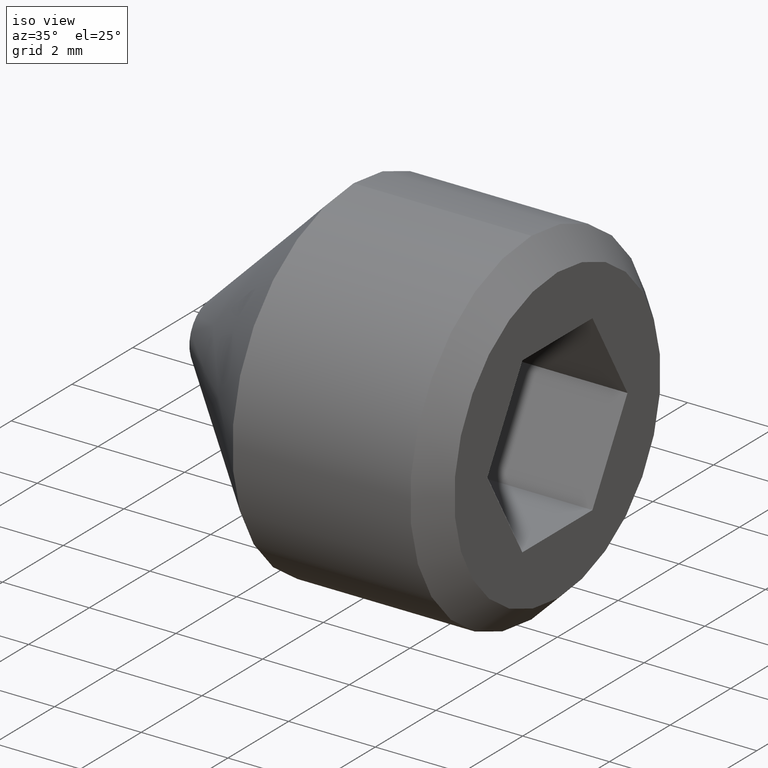
[diagram: clean part render]
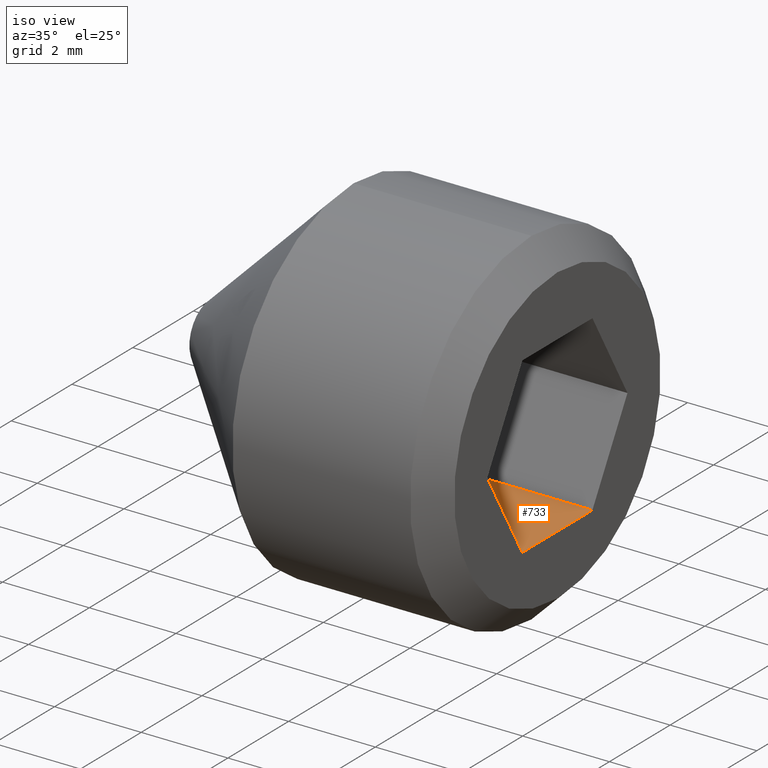
[diagram: same view with one face highlighted and labeled with its STEP entity id]
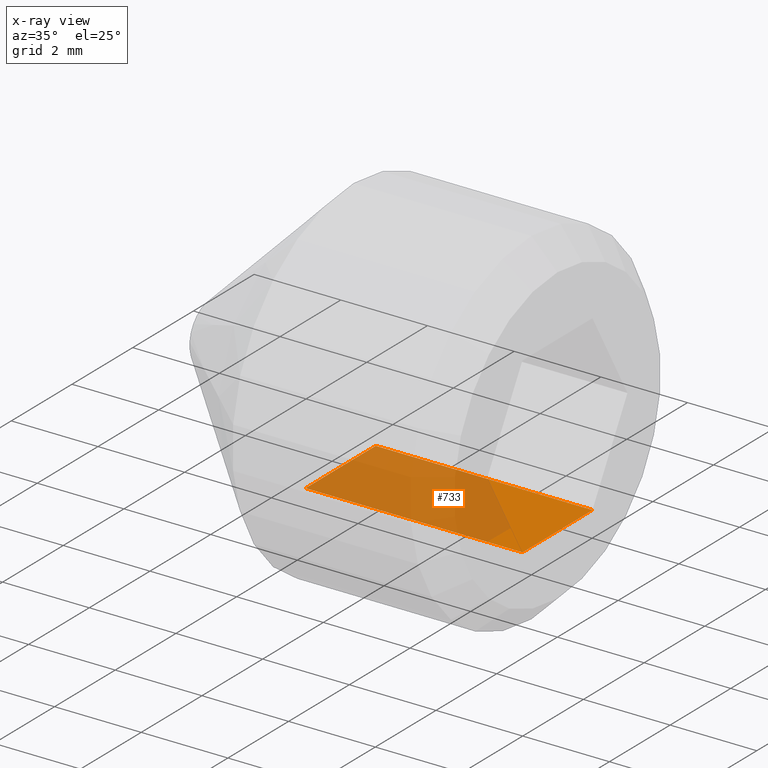
[diagram: x-ray of the same camera — body ghosted, the highlighted face saturated]
A machine part, iso view. The second image highlights one B-rep face of the part: STEP entity #733.
The next image is the same camera in x-ray: the body ghosted, the highlighted face saturated — about 73% of this face is hidden behind the body in this view.
In plain terms, the highlighted planar face has unit normal (0, 0, -1).
Its self-contained STEP definition (entity closure, byte-faithful):
#458 = CARTESIAN_POINT ( 'NONE',  ( 3.000000000000000000, -1.154700538379252400, -2.000000000000000000 ) ) ;
#733 = ADVANCED_FACE ( 'NONE', ( #1109 ), #6012, .F. ) ;
#1109 = FACE_OUTER_BOUND ( 'NONE', #5049, .T. ) ;
#1644 = DIRECTION ( 'NONE',  ( 1.000000000000000000, -0.0000000000000000000, 6.123031769111886300E-017 ) ) ;
#2254 = LINE ( 'NONE', #5910, #3553 ) ;
#2375 = LINE ( 'NONE', #10825, #5421 ) ;
#2512 = ORIENTED_EDGE ( 'NONE', *, *, #6516, .T. ) ;
#3202 = EDGE_CURVE ( 'NONE', #9462, #4378, #2254, .T. ) ;
#3441 = CARTESIAN_POINT ( 'NONE',  ( 8.000000000000000000, 1.154700538379252400, -1.999999999999999600 ) ) ;
#3553 = VECTOR ( 'NONE', #11502, 1000.000000000000000 ) ;
#3613 = ORIENTED_EDGE ( 'NONE', *, *, #3202, .T. ) ;
#3988 = CARTESIAN_POINT ( 'NONE',  ( 3.000000000000000000, -1.154700538379252400, -2.000000000000000000 ) ) ;
#4184 = ORIENTED_EDGE ( 'NONE', *, *, #6879, .F. ) ;
#4260 = DIRECTION ( 'NONE',  ( 1.000000000000000000, -0.0000000000000000000, 6.123031769111886300E-017 ) ) ;
#4319 = EDGE_CURVE ( 'NONE', #11632, #4378, #2375, .T. ) ;
#4375 = LINE ( 'NONE', #10713, #7671 ) ;
#4378 = VERTEX_POINT ( 'NONE', #3441 ) ;
#4649 = VERTEX_POINT ( 'NONE', #3988 ) ;
#5041 = CARTESIAN_POINT ( 'NONE',  ( 3.000000000000000000, -1.154700538379252400, -2.000000000000000000 ) ) ;
#5049 = EDGE_LOOP ( 'NONE', ( #3613, #10000, #4184, #2512 ) ) ;
#5175 = DIRECTION ( 'NONE',  ( 6.123031769111886300E-017, 0.0000000000000000000, -1.000000000000000000 ) ) ;
#5421 = VECTOR ( 'NONE', #4260, 1000.000000000000000 ) ;
#5910 = CARTESIAN_POINT ( 'NONE',  ( 8.000000000000000000, -1.154700538379252400, -1.999999999999999600 ) ) ;
#6012 = PLANE ( 'NONE',  #9906 ) ;
#6344 = CARTESIAN_POINT ( 'NONE',  ( 8.000000000000000000, -1.154700538379252400, -1.999999999999999600 ) ) ;
#6382 = CARTESIAN_POINT ( 'NONE',  ( 3.000000000000000000, 1.154700538379252400, -2.000000000000000000 ) ) ;
#6516 = EDGE_CURVE ( 'NONE', #4649, #9462, #4375, .T. ) ;
#6879 = EDGE_CURVE ( 'NONE', #4649, #11632, #8249, .T. ) ;
#7671 = VECTOR ( 'NONE', #1644, 1000.000000000000000 ) ;
#8249 = LINE ( 'NONE', #5041, #10098 ) ;
#9462 = VERTEX_POINT ( 'NONE', #6344 ) ;
#9769 = DIRECTION ( 'NONE',  ( -1.000000000000000000, 0.0000000000000000000, -6.123031769111886300E-017 ) ) ;
#9906 = AXIS2_PLACEMENT_3D ( 'NONE', #458, #5175, #9769 ) ;
#10000 = ORIENTED_EDGE ( 'NONE', *, *, #4319, .F. ) ;
#10098 = VECTOR ( 'NONE', #10589, 1000.000000000000000 ) ;
#10589 = DIRECTION ( 'NONE',  ( 0.0000000000000000000, 1.000000000000000000, 0.0000000000000000000 ) ) ;
#10713 = CARTESIAN_POINT ( 'NONE',  ( 3.000000000000000000, -1.154700538379252400, -2.000000000000000000 ) ) ;
#10825 = CARTESIAN_POINT ( 'NONE',  ( 3.000000000000000000, 1.154700538379252400, -2.000000000000000000 ) ) ;
#11502 = DIRECTION ( 'NONE',  ( 0.0000000000000000000, 1.000000000000000000, 0.0000000000000000000 ) ) ;
#11632 = VERTEX_POINT ( 'NONE', #6382 ) ;